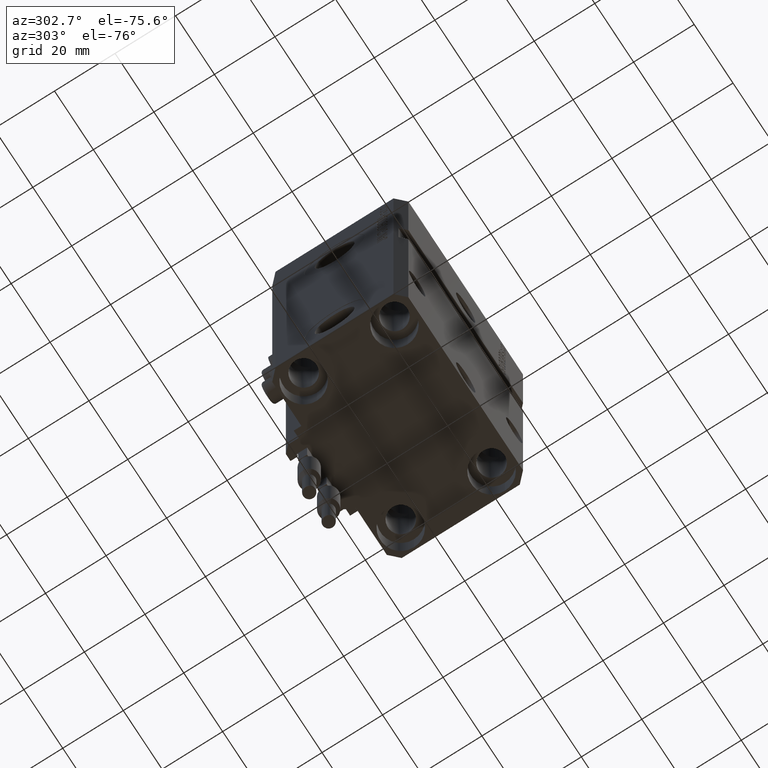
[diagram: clean part render]
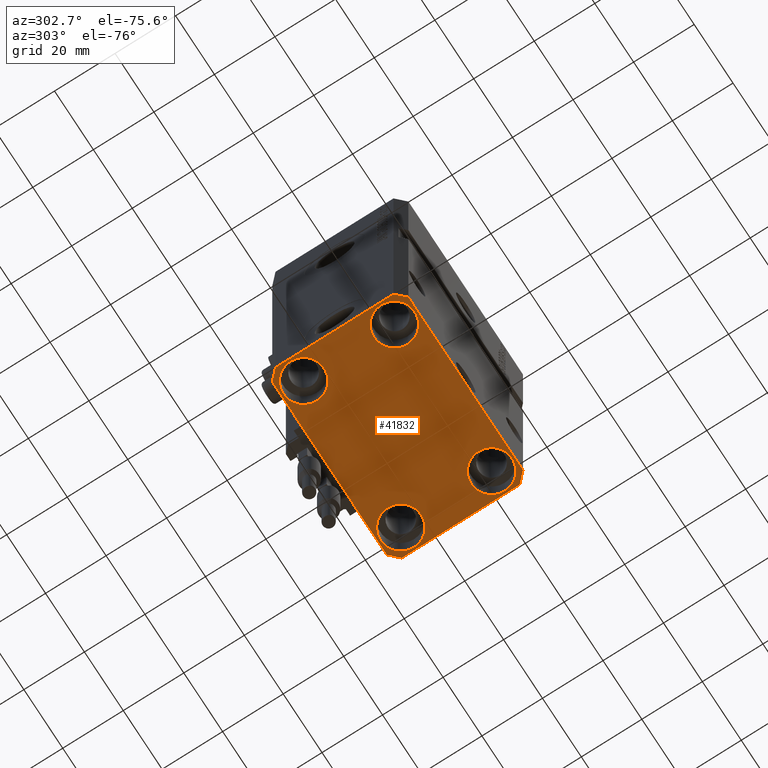
[diagram: same view with one face highlighted and labeled with its STEP entity id]
A machine part, auxiliary view. The second image highlights one B-rep face of the part: STEP entity #41832.
In plain terms, the highlighted planar face has unit normal (0, 0, 1).
Its self-contained STEP definition (entity closure, byte-faithful):
#66 = DIRECTION ( 'NONE',  ( -1.000000000000000000, -2.352167425053553784E-16, 0.000000000000000000 ) ) ;
#129 = CARTESIAN_POINT ( 'NONE',  ( -25.00000000000000355, -15.00000000000000000, -107.0000000000000000 ) ) ;
#130 = EDGE_CURVE ( 'NONE', #20557, #36871, #31231, .T. ) ;
#411 = DIRECTION ( 'NONE',  ( 0.7071067811865483499, 0.7071067811865466846, 0.000000000000000000 ) ) ;
#682 = DIRECTION ( 'NONE',  ( -0.000000000000000000, -0.000000000000000000, 1.000000000000000000 ) ) ;
#805 = DIRECTION ( 'NONE',  ( -0.000000000000000000, -0.000000000000000000, 1.000000000000000000 ) ) ;
#828 = CARTESIAN_POINT ( 'NONE',  ( -29.49999999999650413, 22.49999999999949907, -107.0000000000000000 ) ) ;
#1715 = DIRECTION ( 'NONE',  ( 0.7071067811865474617, -0.7071067811865474617, 0.000000000000000000 ) ) ;
#2171 = VECTOR ( 'NONE', #411, 1000.000000000000000 ) ;
#3976 = CARTESIAN_POINT ( 'NONE',  ( -25.00000000000000355, -15.00000000000000000, -107.0000000000000000 ) ) ;
#5372 = CARTESIAN_POINT ( 'NONE',  ( 29.49999999999650413, -22.49999999999949196, -107.0000000000000000 ) ) ;
#5680 = CARTESIAN_POINT ( 'NONE',  ( -29.49999999999650413, -22.49999999999949907, -107.0000000000000000 ) ) ;
#6538 = EDGE_CURVE ( 'NONE', #31312, #23104, #38655, .T. ) ;
#6590 = ORIENTED_EDGE ( 'NONE', *, *, #36337, .F. ) ;
#6742 = DIRECTION ( 'NONE',  ( 1.000000000000000000, 0.000000000000000000, 0.000000000000000000 ) ) ;
#7289 = ORIENTED_EDGE ( 'NONE', *, *, #11997, .F. ) ;
#7319 = DIRECTION ( 'NONE',  ( -0.000000000000000000, -0.000000000000000000, 1.000000000000000000 ) ) ;
#7379 = FACE_BOUND ( 'NONE', #17162, .T. ) ;
#7603 = AXIS2_PLACEMENT_3D ( 'NONE', #26330, #29147, #29658 ) ;
#7682 = VERTEX_POINT ( 'NONE', #40277 ) ;
#7889 = EDGE_CURVE ( 'NONE', #27163, #11277, #32959, .T. ) ;
#8197 = LINE ( 'NONE', #23804, #39512 ) ;
#8534 = LINE ( 'NONE', #16228, #42788 ) ;
#9148 = CARTESIAN_POINT ( 'NONE',  ( -32.49999999999650413, -19.49999999999949907, -107.0000000000000000 ) ) ;
#10388 = CIRCLE ( 'NONE', #29165, 6.749999999977465137 ) ;
#10427 = ORIENTED_EDGE ( 'NONE', *, *, #130, .F. ) ;
#10905 = AXIS2_PLACEMENT_3D ( 'NONE', #41554, #26199, #6742 ) ;
#11084 = VERTEX_POINT ( 'NONE', #22301 ) ;
#11277 = VERTEX_POINT ( 'NONE', #44505 ) ;
#11413 = CARTESIAN_POINT ( 'NONE',  ( -31.75000000002253842, 15.00000000000000000, -107.0000000000000000 ) ) ;
#11646 = CARTESIAN_POINT ( 'NONE',  ( 31.74999999995845101, 15.00000000000000888, -107.0000000000000000 ) ) ;
#11731 = DIRECTION ( 'NONE',  ( 1.000000000000000000, 0.000000000000000000, -0.000000000000000000 ) ) ;
#11750 = CARTESIAN_POINT ( 'NONE',  ( 29.49999999999707967, 22.49999999999951328, -107.0000000000000000 ) ) ;
#11864 = AXIS2_PLACEMENT_3D ( 'NONE', #31789, #805, #33235 ) ;
#11997 = EDGE_CURVE ( 'NONE', #49784, #13148, #8197, .T. ) ;
#12167 = CARTESIAN_POINT ( 'NONE',  ( 32.49999999999702993, 19.49999999999945999, -107.0000000000000000 ) ) ;
#12386 = CARTESIAN_POINT ( 'NONE',  ( 31.74999999997746869, -15.00000000000000000, -107.0000000000000000 ) ) ;
#12481 = AXIS2_PLACEMENT_3D ( 'NONE', #16067, #682, #31662 ) ;
#12533 = CARTESIAN_POINT ( 'NONE',  ( -29.49999999999650413, 22.49999999999949907, -107.0000000000000000 ) ) ;
#13148 = VERTEX_POINT ( 'NONE', #11750 ) ;
#14293 = EDGE_CURVE ( 'NONE', #13148, #20557, #30284, .T. ) ;
#14417 = EDGE_CURVE ( 'NONE', #23104, #31312, #32252, .T. ) ;
#14428 = VECTOR ( 'NONE', #32801, 1000.000000000000000 ) ;
#14655 = VERTEX_POINT ( 'NONE', #15829 ) ;
#15829 = CARTESIAN_POINT ( 'NONE',  ( -31.75000000004154899, -15.00000000000000000, -107.0000000000000000 ) ) ;
#16032 = CIRCLE ( 'NONE', #48702, 6.749999999958452790 ) ;
#16067 = CARTESIAN_POINT ( 'NONE',  ( -25.00000000000000355, 15.00000000000000000, -107.0000000000000000 ) ) ;
#16228 = CARTESIAN_POINT ( 'NONE',  ( -32.49999999999650413, 19.49999999999949907, -107.0000000000000000 ) ) ;
#16336 = EDGE_CURVE ( 'NONE', #11277, #27163, #16032, .T. ) ;
#16384 = DIRECTION ( 'NONE',  ( -0.7071067811865352493, 0.7071067811865597852, 0.000000000000000000 ) ) ;
#16904 = ORIENTED_EDGE ( 'NONE', *, *, #14417, .T. ) ;
#16977 = CARTESIAN_POINT ( 'NONE',  ( 25.00000000000000355, -15.00000000000000000, -107.0000000000000000 ) ) ;
#17162 = EDGE_LOOP ( 'NONE', ( #16904, #20181 ) ) ;
#17300 = VECTOR ( 'NONE', #30621, 1000.000000000000000 ) ;
#17382 = CIRCLE ( 'NONE', #7603, 6.749999999977465137 ) ;
#18008 = VECTOR ( 'NONE', #39415, 1000.000000000000114 ) ;
#18120 = AXIS2_PLACEMENT_3D ( 'NONE', #129, #7319, #30355 ) ;
#18318 = VERTEX_POINT ( 'NONE', #49189 ) ;
#18748 = AXIS2_PLACEMENT_3D ( 'NONE', #23002, #42696, #11731 ) ;
#18930 = ORIENTED_EDGE ( 'NONE', *, *, #36758, .F. ) ;
#18987 = CIRCLE ( 'NONE', #18120, 6.750000000041541881 ) ;
#19002 = EDGE_LOOP ( 'NONE', ( #23564, #25800 ) ) ;
#19230 = VECTOR ( 'NONE', #66, 1000.000000000000000 ) ;
#20181 = ORIENTED_EDGE ( 'NONE', *, *, #6538, .T. ) ;
#20557 = VERTEX_POINT ( 'NONE', #828 ) ;
#21014 = EDGE_LOOP ( 'NONE', ( #28991, #7289, #32210, #18930, #6590, #49955, #30657, #10427 ) ) ;
#21301 = DIRECTION ( 'NONE',  ( -0.000000000000000000, -0.000000000000000000, 1.000000000000000000 ) ) ;
#21560 = DIRECTION ( 'NONE',  ( 1.000000000000000000, 0.000000000000000000, 0.000000000000000000 ) ) ;
#22301 = CARTESIAN_POINT ( 'NONE',  ( -18.24999999995845812, -15.00000000000000000, -107.0000000000000000 ) ) ;
#22499 = PLANE ( 'NONE',  #18748 ) ;
#22644 = EDGE_CURVE ( 'NONE', #18318, #26307, #17382, .T. ) ;
#22696 = CARTESIAN_POINT ( 'NONE',  ( 32.49999999999651124, -19.49999999999949196, -107.0000000000000000 ) ) ;
#22923 = DIRECTION ( 'NONE',  ( 1.000000000000000000, 0.000000000000000000, 0.000000000000000000 ) ) ;
#23002 = CARTESIAN_POINT ( 'NONE',  ( 0.000000000000000000, 0.000000000000000000, -107.0000000000000000 ) ) ;
#23079 = EDGE_CURVE ( 'NONE', #28181, #49784, #50067, .T. ) ;
#23102 = EDGE_CURVE ( 'NONE', #11084, #14655, #18987, .T. ) ;
#23104 = VERTEX_POINT ( 'NONE', #11413 ) ;
#23564 = ORIENTED_EDGE ( 'NONE', *, *, #27093, .T. ) ;
#23804 = CARTESIAN_POINT ( 'NONE',  ( 32.49999999999702993, 19.49999999999945999, -107.0000000000000000 ) ) ;
#24239 = ORIENTED_EDGE ( 'NONE', *, *, #7889, .T. ) ;
#24390 = DIRECTION ( 'NONE',  ( -0.000000000000000000, -0.000000000000000000, 1.000000000000000000 ) ) ;
#24503 = ORIENTED_EDGE ( 'NONE', *, *, #22644, .T. ) ;
#25800 = ORIENTED_EDGE ( 'NONE', *, *, #23102, .T. ) ;
#26199 = DIRECTION ( 'NONE',  ( -0.000000000000000000, -0.000000000000000000, 1.000000000000000000 ) ) ;
#26272 = EDGE_CURVE ( 'NONE', #36871, #50210, #8534, .T. ) ;
#26307 = VERTEX_POINT ( 'NONE', #12386 ) ;
#26330 = CARTESIAN_POINT ( 'NONE',  ( 25.00000000000000355, -15.00000000000000000, -107.0000000000000000 ) ) ;
#26869 = ORIENTED_EDGE ( 'NONE', *, *, #16336, .T. ) ;
#27093 = EDGE_CURVE ( 'NONE', #14655, #11084, #46075, .T. ) ;
#27163 = VERTEX_POINT ( 'NONE', #11646 ) ;
#28181 = VERTEX_POINT ( 'NONE', #43511 ) ;
#28574 = CARTESIAN_POINT ( 'NONE',  ( -32.49999999999650413, -19.49999999999949907, -107.0000000000000000 ) ) ;
#28991 = ORIENTED_EDGE ( 'NONE', *, *, #14293, .F. ) ;
#29147 = DIRECTION ( 'NONE',  ( -0.000000000000000000, -0.000000000000000000, 1.000000000000000000 ) ) ;
#29165 = AXIS2_PLACEMENT_3D ( 'NONE', #16977, #24390, #38847 ) ;
#29658 = DIRECTION ( 'NONE',  ( 1.000000000000000000, 0.000000000000000000, 0.000000000000000000 ) ) ;
#30284 = LINE ( 'NONE', #42062, #19230 ) ;
#30355 = DIRECTION ( 'NONE',  ( 1.000000000000000000, 0.000000000000000000, 0.000000000000000000 ) ) ;
#30621 = DIRECTION ( 'NONE',  ( 1.334402673828349134E-14, 1.000000000000000000, 0.000000000000000000 ) ) ;
#30657 = ORIENTED_EDGE ( 'NONE', *, *, #26272, .F. ) ;
#31171 = FACE_BOUND ( 'NONE', #19002, .T. ) ;
#31231 = LINE ( 'NONE', #12533, #18008 ) ;
#31293 = EDGE_LOOP ( 'NONE', ( #24503, #46898 ) ) ;
#31312 = VERTEX_POINT ( 'NONE', #44253 ) ;
#31662 = DIRECTION ( 'NONE',  ( 1.000000000000000000, 0.000000000000000000, 0.000000000000000000 ) ) ;
#31789 = CARTESIAN_POINT ( 'NONE',  ( -25.00000000000000355, 15.00000000000000000, -107.0000000000000000 ) ) ;
#31827 = DIRECTION ( 'NONE',  ( 0.000000000000000000, -1.000000000000000000, 0.000000000000000000 ) ) ;
#32210 = ORIENTED_EDGE ( 'NONE', *, *, #23079, .F. ) ;
#32252 = CIRCLE ( 'NONE', #11864, 6.750000000022533087 ) ;
#32801 = DIRECTION ( 'NONE',  ( 1.000000000000000000, 1.176083712526788232E-16, 0.000000000000000000 ) ) ;
#32959 = CIRCLE ( 'NONE', #10905, 6.749999999958452790 ) ;
#33235 = DIRECTION ( 'NONE',  ( 1.000000000000000000, 0.000000000000000000, 0.000000000000000000 ) ) ;
#33831 = VERTEX_POINT ( 'NONE', #5372 ) ;
#34943 = EDGE_CURVE ( 'NONE', #50210, #7682, #44476, .T. ) ;
#35423 = AXIS2_PLACEMENT_3D ( 'NONE', #3976, #42869, #22923 ) ;
#36337 = EDGE_CURVE ( 'NONE', #7682, #33831, #36905, .T. ) ;
#36758 = EDGE_CURVE ( 'NONE', #33831, #28181, #44136, .T. ) ;
#36871 = VERTEX_POINT ( 'NONE', #45934 ) ;
#36905 = LINE ( 'NONE', #5680, #14428 ) ;
#37364 = EDGE_LOOP ( 'NONE', ( #26869, #24239 ) ) ;
#37997 = EDGE_CURVE ( 'NONE', #26307, #18318, #10388, .T. ) ;
#38358 = FACE_OUTER_BOUND ( 'NONE', #21014, .T. ) ;
#38655 = CIRCLE ( 'NONE', #12481, 6.750000000022533087 ) ;
#38847 = DIRECTION ( 'NONE',  ( 1.000000000000000000, 0.000000000000000000, 0.000000000000000000 ) ) ;
#39415 = DIRECTION ( 'NONE',  ( -0.7071067811865474617, -0.7071067811865474617, 0.000000000000000000 ) ) ;
#39512 = VECTOR ( 'NONE', #16384, 1000.000000000000000 ) ;
#39811 = CARTESIAN_POINT ( 'NONE',  ( 29.49999999999650413, -22.49999999999949196, -107.0000000000000000 ) ) ;
#40277 = CARTESIAN_POINT ( 'NONE',  ( -29.49999999999650413, -22.49999999999949907, -107.0000000000000000 ) ) ;
#41509 = CARTESIAN_POINT ( 'NONE',  ( 24.99999999999999645, 15.00000000000000888, -107.0000000000000000 ) ) ;
#41554 = CARTESIAN_POINT ( 'NONE',  ( 24.99999999999999645, 15.00000000000000888, -107.0000000000000000 ) ) ;
#41832 = ADVANCED_FACE ( 'NONE', ( #31171, #46546, #46792, #7379, #38358 ), #22499, .F. ) ;
#42062 = CARTESIAN_POINT ( 'NONE',  ( 29.49999999999707967, 22.49999999999951328, -107.0000000000000000 ) ) ;
#42696 = DIRECTION ( 'NONE',  ( 0.000000000000000000, 0.000000000000000000, 1.000000000000000000 ) ) ;
#42788 = VECTOR ( 'NONE', #31827, 1000.000000000000000 ) ;
#42869 = DIRECTION ( 'NONE',  ( -0.000000000000000000, -0.000000000000000000, 1.000000000000000000 ) ) ;
#43511 = CARTESIAN_POINT ( 'NONE',  ( 32.49999999999651124, -19.49999999999949196, -107.0000000000000000 ) ) ;
#44136 = LINE ( 'NONE', #39811, #2171 ) ;
#44253 = CARTESIAN_POINT ( 'NONE',  ( -18.24999999997747224, 15.00000000000000000, -107.0000000000000000 ) ) ;
#44476 = LINE ( 'NONE', #9148, #47982 ) ;
#44505 = CARTESIAN_POINT ( 'NONE',  ( 18.25000000004154543, 15.00000000000000888, -107.0000000000000000 ) ) ;
#45934 = CARTESIAN_POINT ( 'NONE',  ( -32.49999999999650413, 19.49999999999949907, -107.0000000000000000 ) ) ;
#46075 = CIRCLE ( 'NONE', #35423, 6.750000000041541881 ) ;
#46546 = FACE_BOUND ( 'NONE', #31293, .T. ) ;
#46792 = FACE_BOUND ( 'NONE', #37364, .T. ) ;
#46898 = ORIENTED_EDGE ( 'NONE', *, *, #37997, .T. ) ;
#47982 = VECTOR ( 'NONE', #1715, 1000.000000000000114 ) ;
#48702 = AXIS2_PLACEMENT_3D ( 'NONE', #41509, #21301, #21560 ) ;
#49189 = CARTESIAN_POINT ( 'NONE',  ( 18.25000000002253842, -15.00000000000000000, -107.0000000000000000 ) ) ;
#49784 = VERTEX_POINT ( 'NONE', #12167 ) ;
#49955 = ORIENTED_EDGE ( 'NONE', *, *, #34943, .F. ) ;
#50067 = LINE ( 'NONE', #22696, #17300 ) ;
#50210 = VERTEX_POINT ( 'NONE', #28574 ) ;